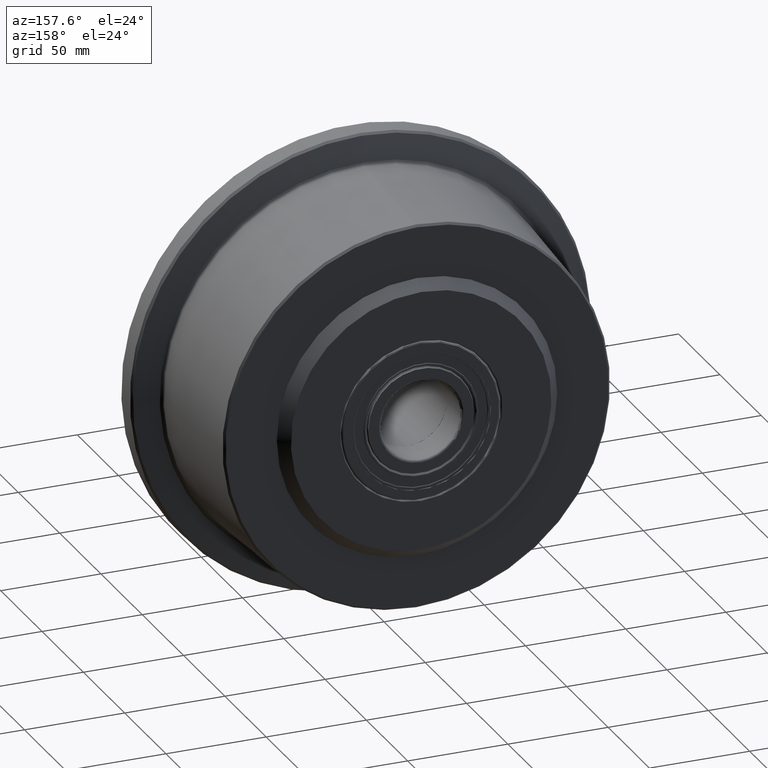
[diagram: clean part render]
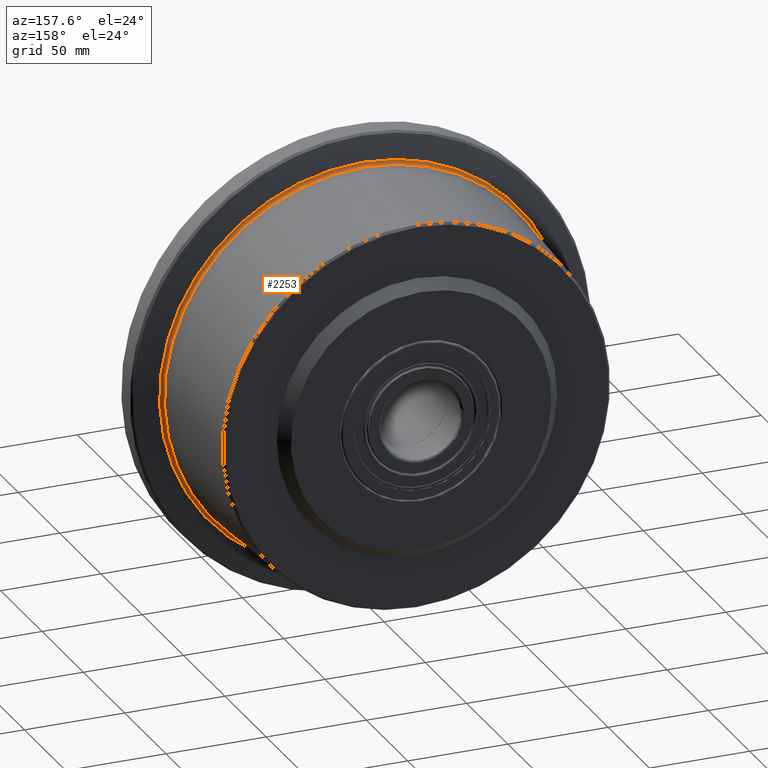
[diagram: same view with one face highlighted and labeled with its STEP entity id]
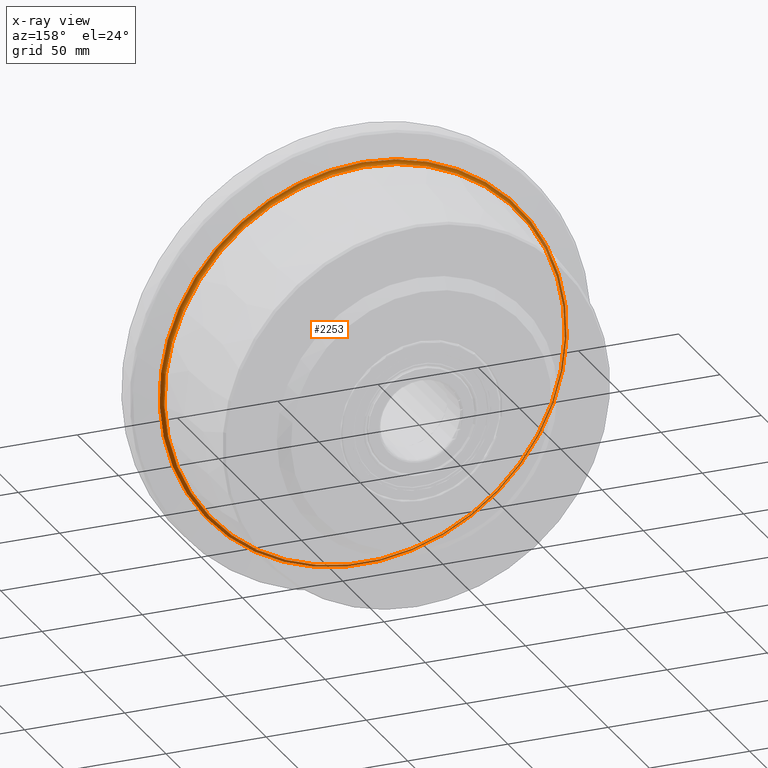
[diagram: x-ray of the same camera — body ghosted, the highlighted face saturated]
A machine part, auxiliary view. The second image highlights one B-rep face of the part: STEP entity #2253.
The next image is the same camera in x-ray: the body ghosted, the highlighted face saturated — about 24% of this face is hidden behind the body in this view.
In plain terms, the highlighted toroidal blend (fillet) surface has major radius 101.914 mm and minor (blend) radius 2 mm.
Its self-contained STEP definition (entity closure, byte-faithful):
#113=TOROIDAL_SURFACE('',#2493,101.913999270852,2.);
#311=FACE_OUTER_BOUND('',#477,.T.);
#477=EDGE_LOOP('',(#1624,#1625,#1626,#1627));
#845=CIRCLE('',#2487,101.566702915518);
#846=CIRCLE('',#2489,99.9167402013424);
#848=CIRCLE('',#2494,2.);
#1055=VERTEX_POINT('',#3825);
#1056=VERTEX_POINT('',#3829);
#1285=EDGE_CURVE('',#1055,#1055,#845,.T.);
#1286=EDGE_CURVE('',#1056,#1056,#846,.F.);
#1291=EDGE_CURVE('',#1055,#1056,#848,.T.);
#1624=ORIENTED_EDGE('',*,*,#1285,.F.);
#1625=ORIENTED_EDGE('',*,*,#1291,.T.);
#1626=ORIENTED_EDGE('',*,*,#1286,.F.);
#1627=ORIENTED_EDGE('',*,*,#1291,.F.);
#2253=ADVANCED_FACE('',(#311),#113,.F.);
#2487=AXIS2_PLACEMENT_3D('',#3827,#2938,#2939);
#2489=AXIS2_PLACEMENT_3D('',#3830,#2942,#2943);
#2493=AXIS2_PLACEMENT_3D('',#3838,#2953,#2954);
#2494=AXIS2_PLACEMENT_3D('',#3839,#2955,#2956);
#2938=DIRECTION('center_axis',(-6.12303176911189E-17,-1.,-6.12303176911189E-17));
#2939=DIRECTION('ref_axis',(0.,6.12303176911189E-17,-1.));
#2942=DIRECTION('center_axis',(-6.12303176911189E-17,-1.,-6.12303176911189E-17));
#2943=DIRECTION('ref_axis',(0.,6.12303176911189E-17,-1.));
#2953=DIRECTION('center_axis',(-6.12303176911189E-17,-1.,-6.12303176911189E-17));
#2954=DIRECTION('ref_axis',(0.,6.83779606930602E-17,-1.));
#2955=DIRECTION('center_axis',(1.,-6.12303176911189E-17,1.22464679914735E-16));
#2956=DIRECTION('ref_axis',(-1.22464679914735E-16,-4.27362254331626E-17,
1.));
#3825=CARTESIAN_POINT('',(-1.39860067022239E-14,-25.2762519947604,101.566702915518));
#3827=CARTESIAN_POINT('Origin',(-1.54767293967994E-15,-25.2762519947603,
2.12614612178719E-15));
#3829=CARTESIAN_POINT('',(-1.36697534578527E-14,-23.4113084012218,99.9167402013424));
#3830=CARTESIAN_POINT('Origin',(-1.43348185097157E-15,-23.4113084012218,
2.24033721049556E-15));
#3838=CARTESIAN_POINT('Origin',(-1.42707275651673E-15,-23.306636488736,
2.2467463049504E-15));
#3839=CARTESIAN_POINT('Origin',(-1.39079380560522E-14,-23.306636488736,
101.913999270852));